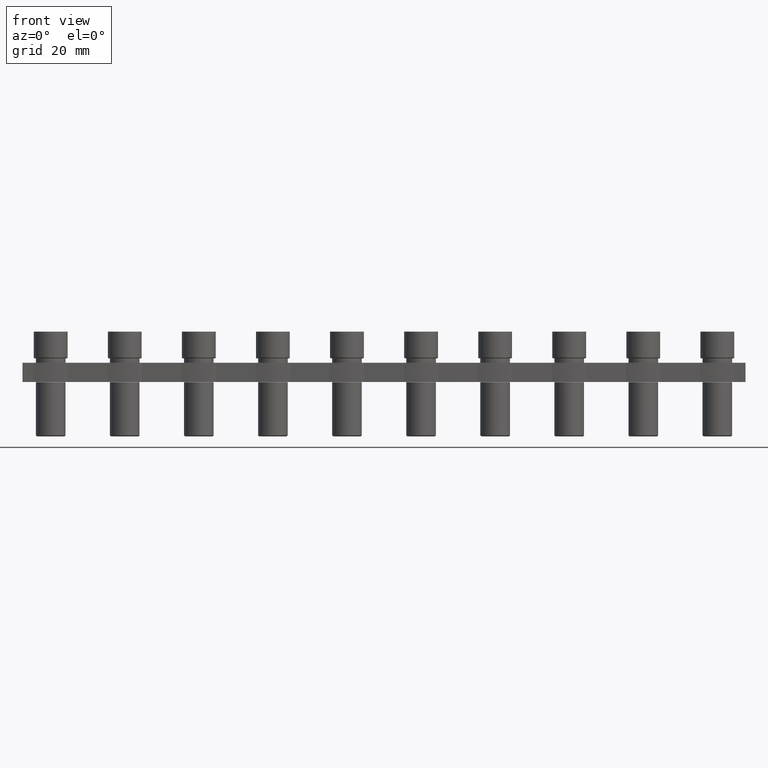
[diagram: clean part render]
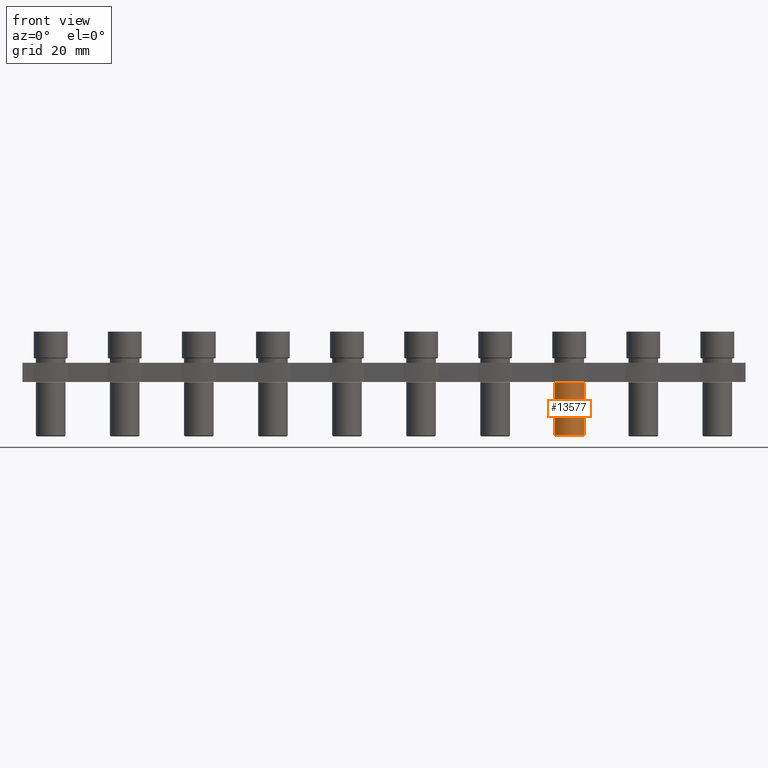
[diagram: same view with one face highlighted and labeled with its STEP entity id]
A machine part, front view. The second image highlights one B-rep face of the part: STEP entity #13577.
In plain terms, the highlighted cylindrical surface (edge-blend (fillet) strip) has radius 3 mm, axis along (0, 0, -1).
Its self-contained STEP definition (entity closure, byte-faithful):
#4652 = EDGE_LOOP ( 'NONE', ( #4823, #4870, #4845, #4871 ) ) ;
#4823 = ORIENTED_EDGE ( 'NONE', *, *, #13428, .T. ) ;
#4845 = ORIENTED_EDGE ( 'NONE', *, *, #13471, .F. ) ;
#4870 = ORIENTED_EDGE ( 'NONE', *, *, #13414, .T. ) ;
#4871 = ORIENTED_EDGE ( 'NONE', *, *, #13424, .F. ) ;
#6052 = VERTEX_POINT ( 'NONE', #9357 ) ;
#6064 = VERTEX_POINT ( 'NONE', #9410 ) ;
#6065 = VERTEX_POINT ( 'NONE', #9378 ) ;
#6066 = VERTEX_POINT ( 'NONE', #9418 ) ;
#9357 = CARTESIAN_POINT ( 'NONE',  ( 102.0016776065418000, 3.641487942865492400E-013, -4.899999999963711200 ) ) ;
#9378 = CARTESIAN_POINT ( 'NONE',  ( 108.0016776065767200, 3.656436091967159300E-013, -15.60000000000000000 ) ) ;
#9410 = CARTESIAN_POINT ( 'NONE',  ( 102.0016776066048300, 3.645161883263151800E-013, -15.60000000000000000 ) ) ;
#9418 = CARTESIAN_POINT ( 'NONE',  ( 108.0016776066397600, 3.660110032364740900E-013, -4.899999999963711200 ) ) ;
#10170 = CYLINDRICAL_SURFACE ( 'NONE', #11257, 3.000000000000002700 ) ;
#10193 = CARTESIAN_POINT ( 'NONE',  ( 105.0016776065907700, 3.652635957813867600E-013, -4.800000000000001600 ) ) ;
#10225 = FACE_OUTER_BOUND ( 'NONE', #4652, .T. ) ;
#10230 = DIRECTION ( 'NONE',  ( 1.000000000000000000, 2.491358183583654200E-016, 0.0000000000000000000 ) ) ;
#10231 = DIRECTION ( 'NONE',  ( 0.0000000000000000000, 0.0000000000000000000, -1.000000000000000000 ) ) ;
#11257 = AXIS2_PLACEMENT_3D ( 'NONE', #10193, #10231, #10230 ) ;
#11305 = VECTOR ( 'NONE', #15463, 1000.000000000000000 ) ;
#11346 = VECTOR ( 'NONE', #15529, 1000.000000000000000 ) ;
#11363 = AXIS2_PLACEMENT_3D ( 'NONE', #15527, #15502, #15516 ) ;
#11384 = CIRCLE ( 'NONE', #11422, 3.000000000000002700 ) ;
#11399 = CIRCLE ( 'NONE', #11363, 3.000000000048977300 ) ;
#11422 = AXIS2_PLACEMENT_3D ( 'NONE', #15644, #15659, #15664 ) ;
#13414 = EDGE_CURVE ( 'NONE', #6052, #6064, #15478, .T. ) ;
#13424 = EDGE_CURVE ( 'NONE', #6066, #6065, #15533, .T. ) ;
#13428 = EDGE_CURVE ( 'NONE', #6066, #6052, #11399, .T. ) ;
#13471 = EDGE_CURVE ( 'NONE', #6065, #6064, #11384, .T. ) ;
#13577 = ADVANCED_FACE ( 'NONE', ( #10225 ), #10170, .T. ) ;
#15459 = CARTESIAN_POINT ( 'NONE',  ( 102.0016776065907700, 3.641487942865674600E-013, -4.800000000000001600 ) ) ;
#15463 = DIRECTION ( 'NONE',  ( 0.0000000000000000000, 0.0000000000000000000, -1.000000000000000000 ) ) ;
#15478 = LINE ( 'NONE', #15459, #11305 ) ;
#15502 = DIRECTION ( 'NONE',  ( -0.0000000000000000000, 0.0000000000000000000, -1.000000000000000000 ) ) ;
#15516 = DIRECTION ( 'NONE',  ( 1.000000000000000000, 2.491358183583741000E-016, 0.0000000000000000000 ) ) ;
#15527 = CARTESIAN_POINT ( 'NONE',  ( 105.0016776065907700, 3.652635957813867600E-013, -4.899999999963711200 ) ) ;
#15528 = CARTESIAN_POINT ( 'NONE',  ( 108.0016776065907700, 3.660110032364618800E-013, -4.800000000000001600 ) ) ;
#15529 = DIRECTION ( 'NONE',  ( 0.0000000000000000000, 0.0000000000000000000, -1.000000000000000000 ) ) ;
#15533 = LINE ( 'NONE', #15528, #11346 ) ;
#15644 = CARTESIAN_POINT ( 'NONE',  ( 105.0016776065907700, 3.652635957813867600E-013, -15.60000000000000000 ) ) ;
#15659 = DIRECTION ( 'NONE',  ( 0.0000000000000000000, 0.0000000000000000000, -1.000000000000000000 ) ) ;
#15664 = DIRECTION ( 'NONE',  ( 1.000000000000000000, 2.491358183583654200E-016, 0.0000000000000000000 ) ) ;